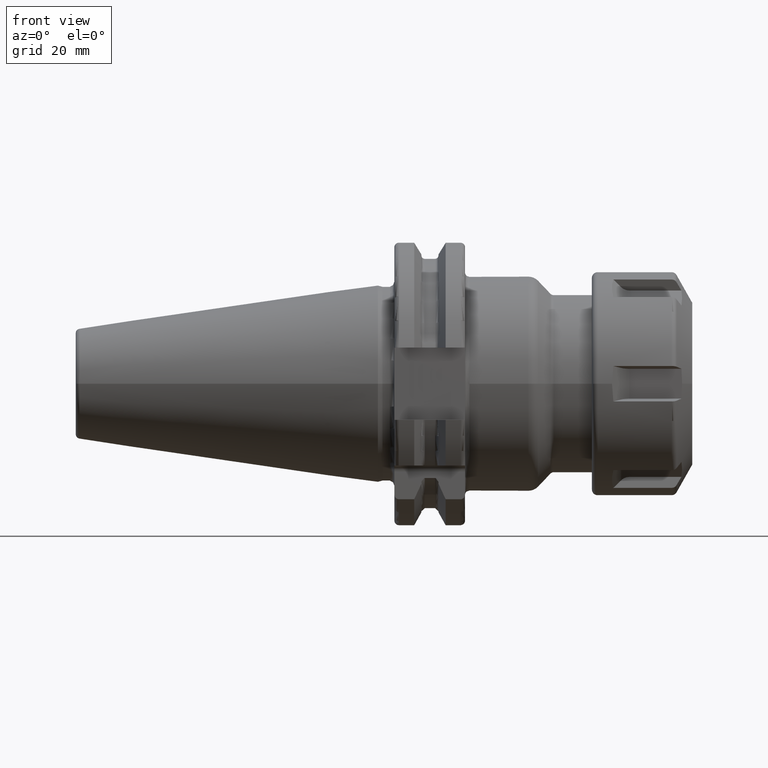
[diagram: clean part render]
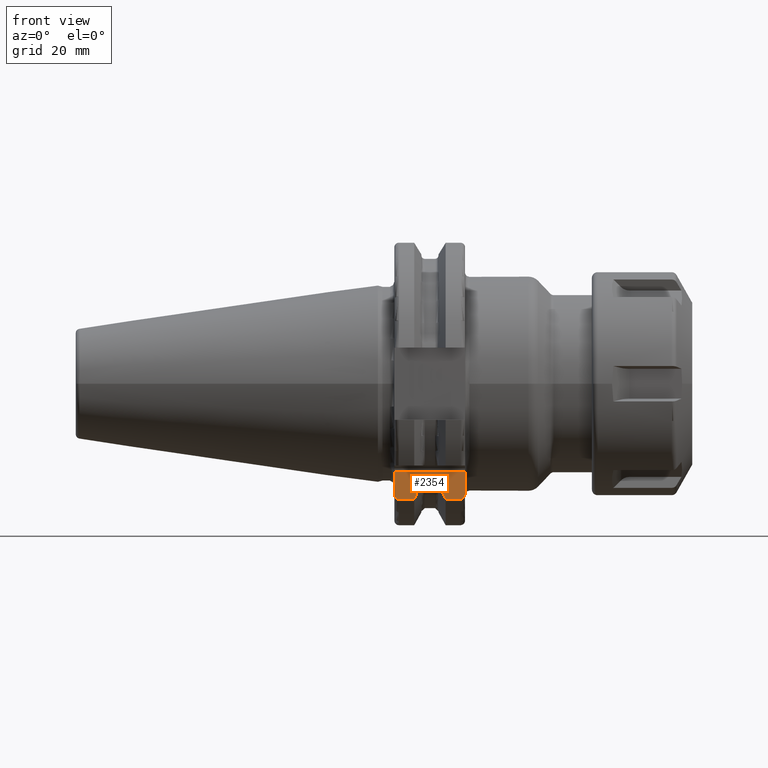
[diagram: same view with one face highlighted and labeled with its STEP entity id]
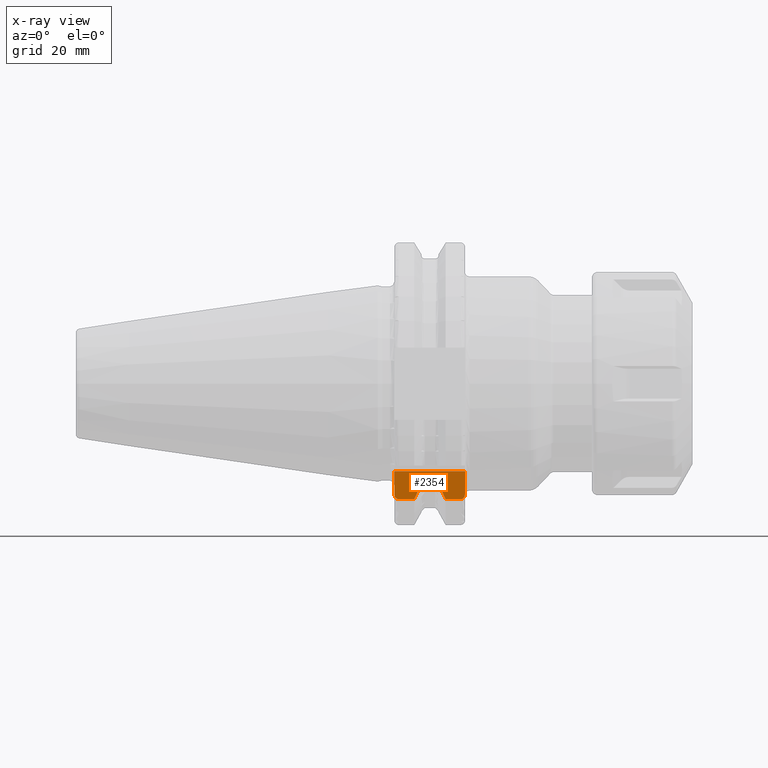
[diagram: x-ray of the same camera — body ghosted, the highlighted face saturated]
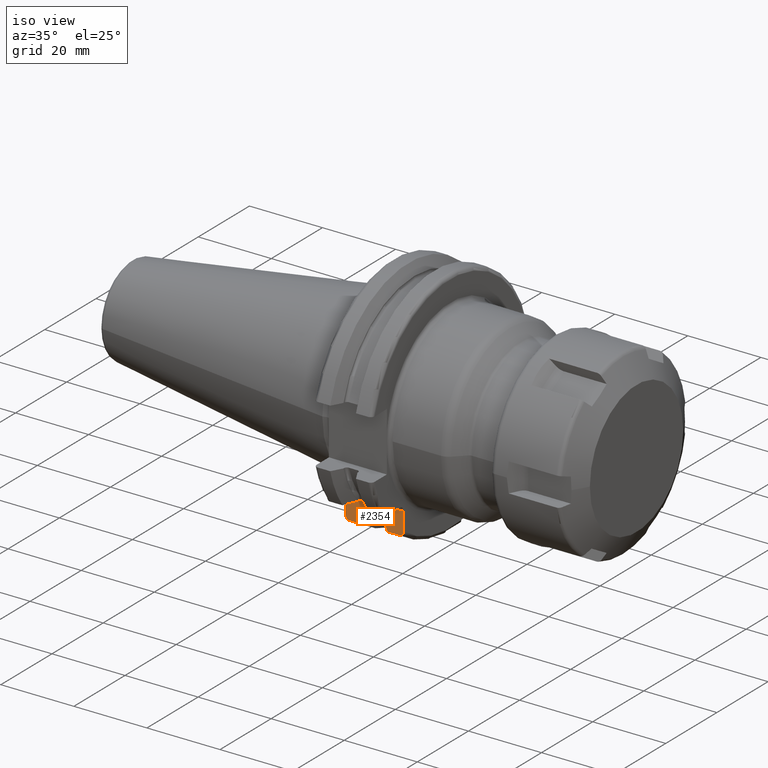
[diagram: same view with one face highlighted and labeled with its STEP entity id]
A machine part, front view. The second image highlights one B-rep face of the part: STEP entity #2354.
The next image is the same camera in x-ray: the body ghosted, the highlighted face saturated — about 0% of this face is hidden behind the body in this view.
A second angle (iso view) of the same face is appended — the face is thin or edge-on in the first view.
In plain terms, the highlighted planar face has unit normal (0, 1, 0).
Its self-contained STEP definition (entity closure, byte-faithful):
#207=DIRECTION('',(0.E0,0.E0,1.E0));
#208=VECTOR('',#207,4.990259339464E0);
#209=CARTESIAN_POINT('',(1.905E1,-1.835E1,-2.469025933946E1));
#210=LINE('',#209,#208);
#293=DIRECTION('',(0.E0,0.E0,1.E0));
#294=VECTOR('',#293,2.754068371193E-1);
#295=CARTESIAN_POINT('',(9.2625E0,-1.835E1,-2.240773613162E1));
#296=LINE('',#295,#294);
#399=DIRECTION('',(0.E0,0.E0,1.E0));
#400=VECTOR('',#399,2.754068371193E-1);
#401=CARTESIAN_POINT('',(1.30875E1,-1.835E1,-2.240773613162E1));
#402=LINE('',#401,#400);
#515=DIRECTION('',(0.E0,0.E0,1.E0));
#516=VECTOR('',#515,4.990259339464E0);
#517=CARTESIAN_POINT('',(3.2E0,-1.835E1,-2.469025933946E1));
#518=LINE('',#517,#516);
#576=DIRECTION('',(-1.E0,0.E0,0.E0));
#577=VECTOR('',#576,1.585E1);
#578=CARTESIAN_POINT('',(1.905E1,-1.835E1,-1.97E1));
#579=LINE('',#578,#577);
#591=CARTESIAN_POINT('',(1.905E1,-1.835E1,-2.469025933946E1));
#592=CARTESIAN_POINT('',(1.905E1,-1.835E1,-2.477827489148E1));
#593=CARTESIAN_POINT('',(1.903550352933E1,-1.835E1,-2.495194722121E1));
#594=CARTESIAN_POINT('',(1.896629632127E1,-1.835E1,-2.521302960336E1));
#595=CARTESIAN_POINT('',(1.884964259244E1,-1.835E1,-2.545175760021E1));
#596=CARTESIAN_POINT('',(1.869337393206E1,-1.835E1,-2.565125079223E1));
#597=CARTESIAN_POINT('',(1.850440420446E1,-1.835E1,-2.580344847600E1));
#598=CARTESIAN_POINT('',(1.828893233655E1,-1.835E1,-2.590127687802E1));
#599=CARTESIAN_POINT('',(1.813210111876E1,-1.835E1,-2.592554543785E1));
#600=CARTESIAN_POINT('',(1.805E1,-1.835E1,-2.592554543785E1));
#638=DIRECTION('',(1.E0,0.E0,0.E0));
#639=VECTOR('',#638,3.445946479578E0);
#640=CARTESIAN_POINT('',(4.2E0,-1.835E1,-2.592554543785E1));
#641=LINE('',#640,#639);
#656=DIRECTION('',(1.E0,0.E0,0.E0));
#657=VECTOR('',#656,3.345946479578E0);
#658=CARTESIAN_POINT('',(1.470405352042E1,-1.835E1,-2.592554543785E1));
#659=LINE('',#658,#657);
#707=CARTESIAN_POINT('',(4.2E0,-1.835E1,-2.592554543785E1));
#708=CARTESIAN_POINT('',(4.117978515713E0,-1.835E1,-2.592554543785E1));
#709=CARTESIAN_POINT('',(3.961246891048E0,-1.835E1,-2.590134188482E1));
#710=CARTESIAN_POINT('',(3.745539786217E0,-1.835E1,-2.580342617652E1));
#711=CARTESIAN_POINT('',(3.556578831610E0,-1.835E1,-2.565121806264E1));
#712=CARTESIAN_POINT('',(3.400124325915E0,-1.835E1,-2.545142383546E1));
#713=CARTESIAN_POINT('',(3.283526257188E0,-1.835E1,-2.521253976185E1));
#714=CARTESIAN_POINT('',(3.214446436835E0,-1.835E1,-2.495157117356E1));
#715=CARTESIAN_POINT('',(3.2E0,-1.835E1,-2.477812311755E1));
#716=CARTESIAN_POINT('',(3.2E0,-1.835E1,-2.469025933946E1));
#757=CARTESIAN_POINT('',(9.2625E0,-1.835E1,-2.240773613162E1));
#758=CARTESIAN_POINT('',(9.097869015375E0,-1.835E1,-2.277629848758E1));
#759=CARTESIAN_POINT('',(8.758691179732E0,-1.835E1,-2.352831190146E1));
#760=CARTESIAN_POINT('',(8.220420735022E0,-1.835E1,-2.469989032362E1));
#761=CARTESIAN_POINT('',(7.840855578955E0,-1.835E1,-2.551194640168E1));
#762=CARTESIAN_POINT('',(7.645946479578E0,-1.835E1,-2.592554543785E1));
#790=CARTESIAN_POINT('',(1.30875E1,-1.835E1,-2.240773613162E1));
#791=CARTESIAN_POINT('',(1.325213098463E1,-1.835E1,-2.277629848758E1));
#792=CARTESIAN_POINT('',(1.359130882027E1,-1.835E1,-2.352831190146E1));
#793=CARTESIAN_POINT('',(1.412957926498E1,-1.835E1,-2.469989032362E1));
#794=CARTESIAN_POINT('',(1.450914442104E1,-1.835E1,-2.551194640168E1));
#795=CARTESIAN_POINT('',(1.470405352042E1,-1.835E1,-2.592554543785E1));
#832=CARTESIAN_POINT('',(1.30875E1,-1.835E1,-2.213232929450E1));
#833=CARTESIAN_POINT('',(1.30875E1,-1.835E1,-2.206221408282E1));
#834=CARTESIAN_POINT('',(1.307623234956E1,-1.835E1,-2.192389012956E1));
#835=CARTESIAN_POINT('',(1.302304002386E1,-1.835E1,-2.171577032079E1));
#836=CARTESIAN_POINT('',(1.293464596960E1,-1.835E1,-2.152606845134E1));
#837=CARTESIAN_POINT('',(1.281674247215E1,-1.835E1,-2.136698869001E1));
#838=CARTESIAN_POINT('',(1.267543530336E1,-1.835E1,-2.124593918272E1));
#839=CARTESIAN_POINT('',(1.251391277471E1,-1.835E1,-2.116784088975E1));
#840=CARTESIAN_POINT('',(1.239797666454E1,-1.835E1,-2.114893614346E1));
#841=CARTESIAN_POINT('',(1.23375E1,-1.835E1,-2.114893614346E1));
#879=DIRECTION('',(1.E0,0.E0,0.E0));
#880=VECTOR('',#879,2.325E0);
#881=CARTESIAN_POINT('',(1.00125E1,-1.835E1,-2.114893614346E1));
#882=LINE('',#881,#880);
#912=CARTESIAN_POINT('',(1.00125E1,-1.835E1,-2.114893614346E1));
#913=CARTESIAN_POINT('',(9.951993698949E0,-1.835E1,-2.114893614346E1));
#914=CARTESIAN_POINT('',(9.836000286499E0,-1.835E1,-2.116785770514E1));
#915=CARTESIAN_POINT('',(9.674360365633E0,-1.835E1,-2.124605529531E1));
#916=CARTESIAN_POINT('',(9.533017193128E0,-1.835E1,-2.136726141392E1));
#917=CARTESIAN_POINT('',(9.415344880527E0,-1.835E1,-2.152613059545E1));
#918=CARTESIAN_POINT('',(9.327039810665E0,-1.835E1,-2.171558232438E1));
#919=CARTESIAN_POINT('',(9.273817984253E0,-1.835E1,-2.192356855291E1));
#920=CARTESIAN_POINT('',(9.2625E0,-1.835E1,-2.206207271485E1));
#921=CARTESIAN_POINT('',(9.2625E0,-1.835E1,-2.213232929450E1));
#1403=CARTESIAN_POINT('',(9.2625E0,-1.835E1,-2.240773613162E1));
#1404=CARTESIAN_POINT('',(9.2625E0,-1.835E1,-2.213232929450E1));
#1405=VERTEX_POINT('',#1403);
#1406=VERTEX_POINT('',#1404);
#1431=CARTESIAN_POINT('',(1.30875E1,-1.835E1,-2.240773613162E1));
#1432=CARTESIAN_POINT('',(1.30875E1,-1.835E1,-2.213232929450E1));
#1433=VERTEX_POINT('',#1431);
#1434=VERTEX_POINT('',#1432);
#1496=CARTESIAN_POINT('',(1.00125E1,-1.835E1,-2.114893614346E1));
#1497=VERTEX_POINT('',#1496);
#1498=CARTESIAN_POINT('',(1.23375E1,-1.835E1,-2.114893614346E1));
#1499=VERTEX_POINT('',#1498);
#1504=CARTESIAN_POINT('',(1.905E1,-1.835E1,-2.469025933946E1));
#1505=VERTEX_POINT('',#1504);
#1506=CARTESIAN_POINT('',(1.805E1,-1.835E1,-2.592554543785E1));
#1507=VERTEX_POINT('',#1506);
#1508=CARTESIAN_POINT('',(4.2E0,-1.835E1,-2.592554543785E1));
#1509=VERTEX_POINT('',#1508);
#1510=CARTESIAN_POINT('',(3.2E0,-1.835E1,-2.469025933946E1));
#1511=VERTEX_POINT('',#1510);
#1516=CARTESIAN_POINT('',(1.905E1,-1.835E1,-1.97E1));
#1517=VERTEX_POINT('',#1516);
#1522=CARTESIAN_POINT('',(3.2E0,-1.835E1,-1.97E1));
#1523=VERTEX_POINT('',#1522);
#1549=VERTEX_POINT('',#795);
#1550=VERTEX_POINT('',#762);
#2324=CARTESIAN_POINT('',(1.905E1,-1.835E1,-2.835E1));
#2325=DIRECTION('',(0.E0,1.E0,0.E0));
#2326=DIRECTION('',(0.E0,0.E0,1.E0));
#2327=AXIS2_PLACEMENT_3D('',#2324,#2325,#2326);
#2328=PLANE('',#2327);
#2329=ORIENTED_EDGE('',*,*,#1926,.F.);
#2331=ORIENTED_EDGE('',*,*,#2330,.T.);
#2333=ORIENTED_EDGE('',*,*,#2332,.F.);
#2335=ORIENTED_EDGE('',*,*,#2334,.F.);
#2336=ORIENTED_EDGE('',*,*,#2134,.T.);
#2338=ORIENTED_EDGE('',*,*,#2337,.T.);
#2340=ORIENTED_EDGE('',*,*,#2339,.F.);
#2342=ORIENTED_EDGE('',*,*,#2341,.T.);
#2343=ORIENTED_EDGE('',*,*,#2048,.F.);
#2345=ORIENTED_EDGE('',*,*,#2344,.T.);
#2347=ORIENTED_EDGE('',*,*,#2346,.F.);
#2349=ORIENTED_EDGE('',*,*,#2348,.T.);
#2350=ORIENTED_EDGE('',*,*,#2258,.T.);
#2351=ORIENTED_EDGE('',*,*,#2317,.F.);
#2352=EDGE_LOOP('',(#2329,#2331,#2333,#2335,#2336,#2338,#2340,#2342,#2343,#2345,
#2347,#2349,#2350,#2351));
#2353=FACE_OUTER_BOUND('',#2352,.F.);
#2354=ADVANCED_FACE('',(#2353),#2328,.F.);
#601=B_SPLINE_CURVE_WITH_KNOTS('',3,(#591,#592,#593,#594,#595,#596,#597,#598,
#599,#600),.UNSPECIFIED.,.F.,.F.,(4,1,1,1,1,1,1,4),(0.E0,1.428571428571E-1,
2.857142857143E-1,4.285714285714E-1,5.714285714286E-1,7.142857142857E-1,
8.571428571429E-1,1.E0),.UNSPECIFIED.);
#717=B_SPLINE_CURVE_WITH_KNOTS('',3,(#707,#708,#709,#710,#711,#712,#713,#714,
#715,#716),.UNSPECIFIED.,.F.,.F.,(4,1,1,1,1,1,1,4),(0.E0,1.428571428571E-1,
2.857142857143E-1,4.285714285714E-1,5.714285714286E-1,7.142857142857E-1,
8.571428571429E-1,1.E0),.UNSPECIFIED.);
#763=B_SPLINE_CURVE_WITH_KNOTS('',3,(#757,#758,#759,#760,#761,#762),
.UNSPECIFIED.,.F.,.F.,(4,1,1,4),(0.E0,3.333333333333E-1,6.666666666667E-1,1.E0),
.UNSPECIFIED.);
#796=B_SPLINE_CURVE_WITH_KNOTS('',3,(#790,#791,#792,#793,#794,#795),
.UNSPECIFIED.,.F.,.F.,(4,1,1,4),(0.E0,3.333333333333E-1,6.666666666667E-1,1.E0),
.UNSPECIFIED.);
#842=B_SPLINE_CURVE_WITH_KNOTS('',3,(#832,#833,#834,#835,#836,#837,#838,#839,
#840,#841),.UNSPECIFIED.,.F.,.F.,(4,1,1,1,1,1,1,4),(0.E0,1.428571428571E-1,
2.857142857143E-1,4.285714285714E-1,5.714285714286E-1,7.142857142857E-1,
8.571428571429E-1,1.E0),.UNSPECIFIED.);
#922=B_SPLINE_CURVE_WITH_KNOTS('',3,(#912,#913,#914,#915,#916,#917,#918,#919,
#920,#921),.UNSPECIFIED.,.F.,.F.,(4,1,1,1,1,1,1,4),(0.E0,1.428571428571E-1,
2.857142857143E-1,4.285714285714E-1,5.714285714286E-1,7.142857142857E-1,
8.571428571429E-1,1.E0),.UNSPECIFIED.);
#1926=EDGE_CURVE('',#1505,#1517,#210,.T.);
#2048=EDGE_CURVE('',#1405,#1406,#296,.T.);
#2134=EDGE_CURVE('',#1433,#1434,#402,.T.);
#2258=EDGE_CURVE('',#1511,#1523,#518,.T.);
#2317=EDGE_CURVE('',#1517,#1523,#579,.T.);
#2330=EDGE_CURVE('',#1505,#1507,#601,.T.);
#2332=EDGE_CURVE('',#1549,#1507,#659,.T.);
#2334=EDGE_CURVE('',#1433,#1549,#796,.T.);
#2337=EDGE_CURVE('',#1434,#1499,#842,.T.);
#2339=EDGE_CURVE('',#1497,#1499,#882,.T.);
#2341=EDGE_CURVE('',#1497,#1406,#922,.T.);
#2344=EDGE_CURVE('',#1405,#1550,#763,.T.);
#2346=EDGE_CURVE('',#1509,#1550,#641,.T.);
#2348=EDGE_CURVE('',#1509,#1511,#717,.T.);